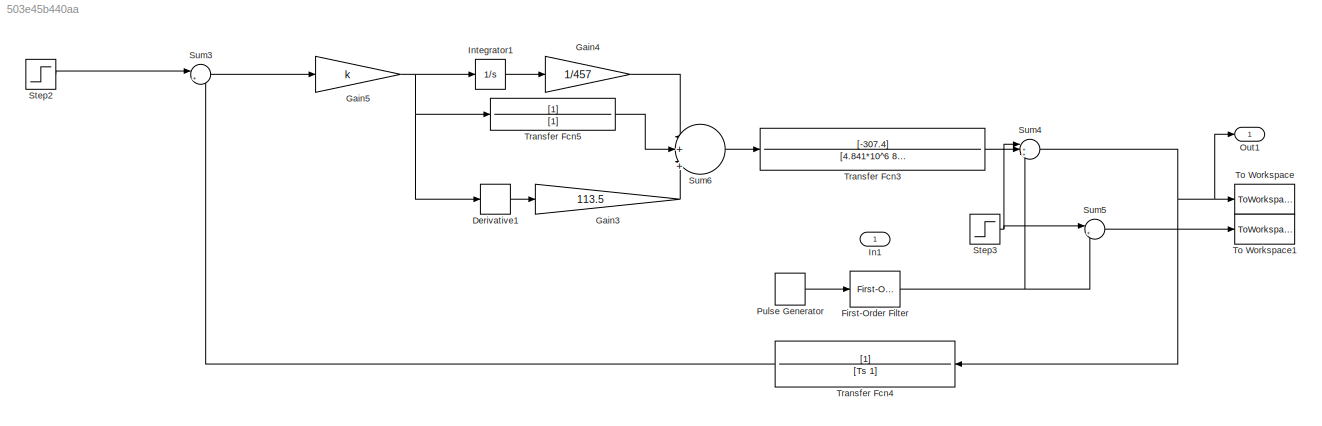
MODEL slx_503e45b440aa
KIND model
CONFIG AbsTol = auto
CONFIG EnableMultiTasking = off
CONFIG FixedStep = auto
CONFIG MaxStep = auto
CONFIG MinStep = auto
CONFIG RelTol = 1e-3
CONFIG SampleTimeConstraint = Unconstrained
CONFIG Solver = VariableStepAuto
CONFIG SolverName = VariableStepAuto
CONFIG StartTime = 0
CONFIG StopTime = 5000
BLOCK [Derivative] Derivative1
BLOCK [Reference] First-Order Filter  REF=powerlib_meascontrol/Filters/First-Order
Filter
  Ports = [1, 1]
  SourceBlock = powerlib_meascontrol/Filters/First-Order\nFilter
  SourceProductBaseCode = PS
  SourceProductName = Simscape Power Systems
  SourceType = First-Order Filter
BLOCK [Gain] Gain3
  Gain = 113.5
  OutDataTypeStr = Inherit: Inherit via internal rule
  ParamDataTypeStr = Inherit: Inherit via internal rule
  SaturateOnIntegerOverflow = off
BLOCK [Gain] Gain4
  Gain = 1/457
  OutDataTypeStr = Inherit: Inherit via internal rule
  ParamDataTypeStr = Inherit: Inherit via internal rule
  SaturateOnIntegerOverflow = off
BLOCK [Gain] Gain5
  Gain = k
  OutDataTypeStr = Inherit: Inherit via internal rule
  ParamDataTypeStr = Inherit: Inherit via internal rule
  SaturateOnIntegerOverflow = off
BLOCK [Inport] In1
  IconDisplay = Port number
BLOCK [Integrator] Integrator1
  Ports = [1, 1]
BLOCK [Outport] Out1
  IconDisplay = Port number
BLOCK [DiscretePulseGenerator] Pulse Generator
  Amplitude = AM
  Period = 10000
  PhaseDelay = 4000
  Ports = [0, 1]
  PulseType = Time based
BLOCK [Step] Step2
  After = 110
  SampleTime = 0
BLOCK [Step] Step3
  After = 110
  SampleTime = 0
BLOCK [Sum] Sum3
  IconShape = round
  InputSameDT = off
  Inputs = |+-
  OutDataTypeStr = Inherit: Inherit via internal rule
  Ports = [2, 1]
  SaturateOnIntegerOverflow = off
BLOCK [Sum] Sum4
  IconShape = round
  InputSameDT = off
  Inputs = |+++
  OutDataTypeStr = Inherit: Inherit via internal rule
  Ports = [3, 1]
  SaturateOnIntegerOverflow = off
BLOCK [Sum] Sum5
  IconShape = round
  InputSameDT = off
  Inputs = |++
  OutDataTypeStr = Inherit: Inherit via internal rule
  Ports = [2, 1]
  SaturateOnIntegerOverflow = off
BLOCK [Sum] Sum6
  IconShape = round
  InputSameDT = off
  Inputs = |+||+||+|
  OutDataTypeStr = Inherit: Inherit via internal rule
  Ports = [3, 1]
  SaturateOnIntegerOverflow = off
BLOCK [ToWorkspace] To Workspace
  FixptAsFi = on
  MaxDataPoints = inf
  Ports = [1]
  SampleTime = 10
  Save2DSignal = 3-D array (concatenate along third dimension)
  SaveFormat = Timeseries
  VariableName = simout
BLOCK [ToWorkspace] To Workspace1
  FixptAsFi = on
  MaxDataPoints = inf
  Ports = [1]
  SampleTime = -1
  Save2DSignal = 3-D array (concatenate along third dimension)
  SaveFormat = Timeseries
  VariableName = simout1
BLOCK [TransferFcn] Transfer Fcn3
  Denominator = [4.841*10^6 88760 527 1]
  Numerator = [-307.4]
BLOCK [TransferFcn] Transfer Fcn4
  Denominator = [Ts 1]
BLOCK [TransferFcn] Transfer Fcn5
  Denominator = [1]
LINE Derivative1:1 -> Gain3:1
NET First-Order Filter:1 -> Sum4:3, Sum5:2
LINE Gain3:1 -> Sum6:3
LINE Gain4:1 -> Sum6:1
NET Gain5:1 -> Derivative1:1, Integrator1:1, Transfer Fcn5:1
LINE Integrator1:1 -> Gain4:1
LINE Pulse Generator:1 -> First-Order Filter:1
LINE Step2:1 -> Sum3:1
NET Step3:1 -> Sum4:2, Sum5:1
LINE Sum3:1 -> Gain5:1
NET Sum4:1 -> Out1:1, To Workspace:1, Transfer Fcn4:1
LINE Sum5:1 -> To Workspace1:1
LINE Sum6:1 -> Transfer Fcn3:1
LINE Transfer Fcn3:1 -> Sum4:1
LINE Transfer Fcn4:1 -> Sum3:2
LINE Transfer Fcn5:1 -> Sum6:2
note: NET lines group one-source signal fan-out (src -> all destinations, sorted); 1:1 wires keep LINE
